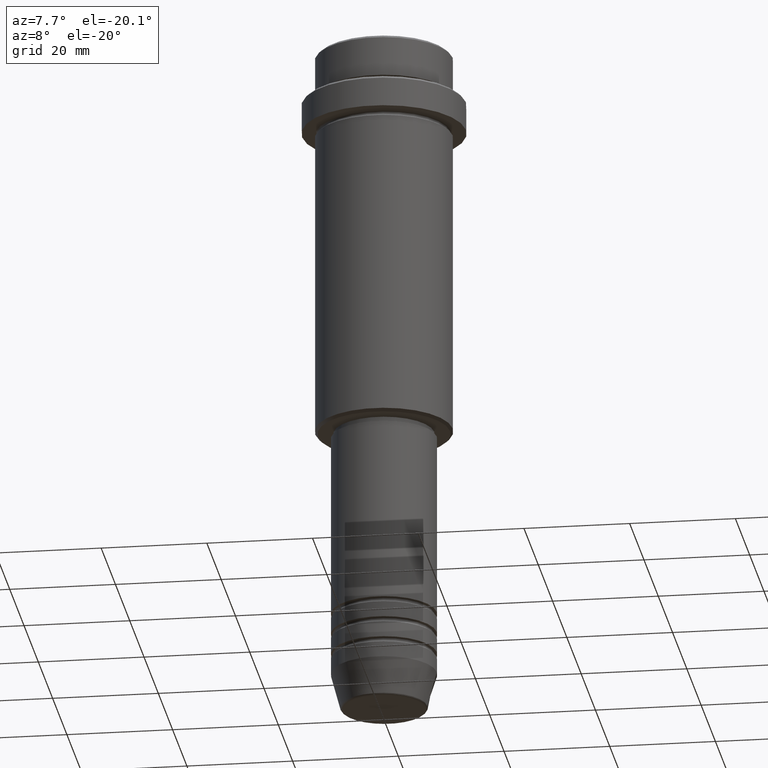
[diagram: clean part render]
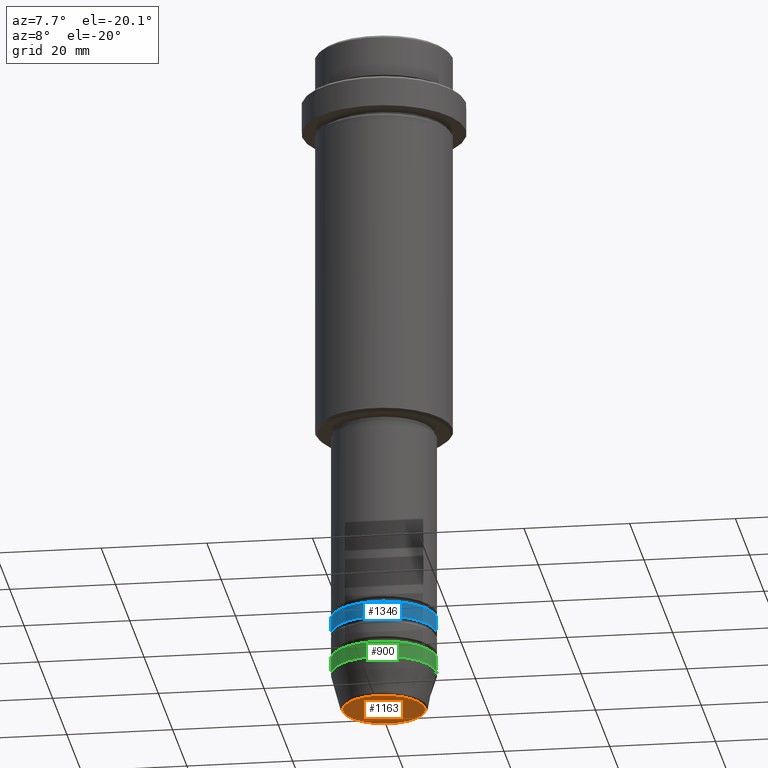
[diagram: same view with three faces highlighted in distinct colors, each labeled with its STEP entity id]
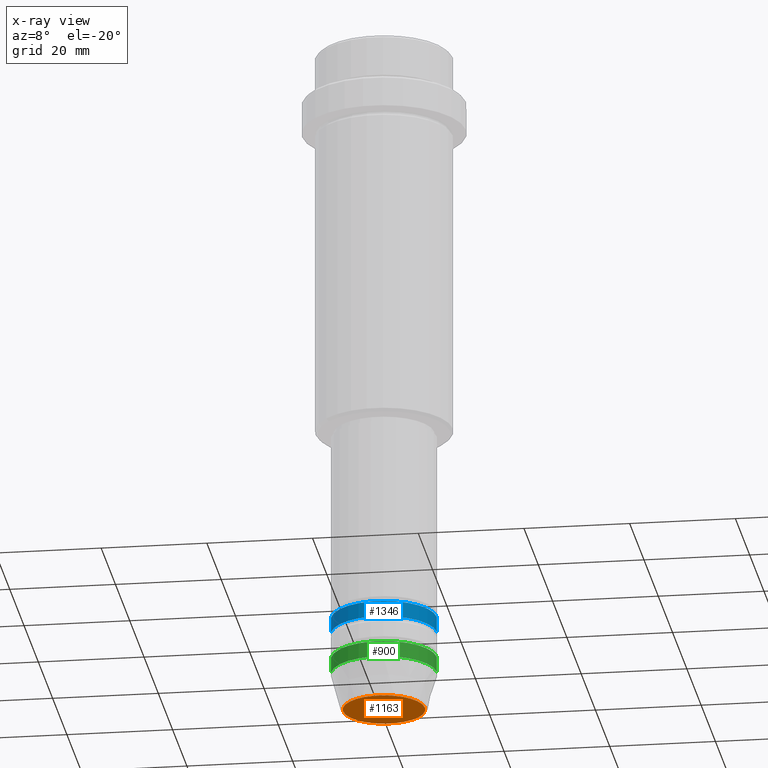
[diagram: x-ray of the same camera — body ghosted, the three highlighted faces saturated]
A machine part, auxiliary view with three faces highlighted in distinct colors.
The next image is the same camera in x-ray (body ghosted, the three faces saturated) — at least one of them is partly hidden behind the body in this view.
Their STEP definitions:

[orange] entity #1163 — the highlighted planar face has unit normal (0, -0, 1).
#33 = DIRECTION ( 'NONE',  ( 1.000000000000000000, 0.000000000000000000, 0.000000000000000000 ) ) ;
#239 = DIRECTION ( 'NONE',  ( 1.000000000000000000, 0.000000000000000000, 0.000000000000000000 ) ) ;
#246 = ORIENTED_EDGE ( 'NONE', *, *, #861, .T. ) ;
#349 = DIRECTION ( 'NONE',  ( 0.000000000000000000, -0.000000000000000000, 1.000000000000000000 ) ) ;
#532 = AXIS2_PLACEMENT_3D ( 'NONE', #1206, #771, #239 ) ;
#619 = CARTESIAN_POINT ( 'NONE',  ( 0.000000000000000000, 0.000000000000000000, -130.0000000000000000 ) ) ;
#697 = VERTEX_POINT ( 'NONE', #1350 ) ;
#703 = AXIS2_PLACEMENT_3D ( 'NONE', #619, #1273, #826 ) ;
#771 = DIRECTION ( 'NONE',  ( 0.000000000000000000, 0.000000000000000000, -1.000000000000000000 ) ) ;
#779 = PLANE ( 'NONE',  #1250 ) ;
#804 = CARTESIAN_POINT ( 'NONE',  ( 0.000000000000000000, 0.000000000000000000, -130.0000000000000000 ) ) ;
#826 = DIRECTION ( 'NONE',  ( 1.000000000000000000, 0.000000000000000000, 0.000000000000000000 ) ) ;
#861 = EDGE_CURVE ( 'NONE', #1036, #697, #1318, .T. ) ;
#917 = EDGE_LOOP ( 'NONE', ( #1000, #246 ) ) ;
#1000 = ORIENTED_EDGE ( 'NONE', *, *, #1173, .T. ) ;
#1036 = VERTEX_POINT ( 'NONE', #1410 ) ;
#1163 = ADVANCED_FACE ( 'NONE', ( #1312 ), #779, .F. ) ;
#1173 = EDGE_CURVE ( 'NONE', #697, #1036, #1277, .T. ) ;
#1206 = CARTESIAN_POINT ( 'NONE',  ( 0.000000000000000000, 0.000000000000000000, -130.0000000000000000 ) ) ;
#1250 = AXIS2_PLACEMENT_3D ( 'NONE', #804, #349, #33 ) ;
#1273 = DIRECTION ( 'NONE',  ( 0.000000000000000000, 0.000000000000000000, -1.000000000000000000 ) ) ;
#1277 = CIRCLE ( 'NONE', #532, 7.740692158992652949 ) ;
#1312 = FACE_OUTER_BOUND ( 'NONE', #917, .T. ) ;
#1318 = CIRCLE ( 'NONE', #703, 7.740692158992652949 ) ;
#1350 = CARTESIAN_POINT ( 'NONE',  ( 7.740692158992652949, 0.000000000000000000, -130.0000000000000000 ) ) ;
#1410 = CARTESIAN_POINT ( 'NONE',  ( -7.740692158992652949, 9.775343368540039135E-16, -130.0000000000000000 ) ) ;

[blue] entity #1346 — the highlighted cylindrical surface (partial cylindrical patch) has radius 10 mm, axis along (-0, -0, 1).
#45 = DIRECTION ( 'NONE',  ( 1.000000000000000000, 0.000000000000000000, 0.000000000000000000 ) ) ;
#110 = EDGE_CURVE ( 'NONE', #543, #1415, #644, .T. ) ;
#137 = LINE ( 'NONE', #1207, #177 ) ;
#177 = VECTOR ( 'NONE', #680, 1000.000000000000000 ) ;
#286 = CARTESIAN_POINT ( 'NONE',  ( 0.000000000000000000, 0.000000000000000000, -111.9999999999998863 ) ) ;
#390 = CARTESIAN_POINT ( 'NONE',  ( 10.00000000000000000, 0.000000000000000000, -114.9999999999999005 ) ) ;
#429 = VERTEX_POINT ( 'NONE', #738 ) ;
#452 = EDGE_CURVE ( 'NONE', #1415, #429, #547, .T. ) ;
#466 = ORIENTED_EDGE ( 'NONE', *, *, #110, .F. ) ;
#526 = ORIENTED_EDGE ( 'NONE', *, *, #1186, .T. ) ;
#543 = VERTEX_POINT ( 'NONE', #1303 ) ;
#547 = CIRCLE ( 'NONE', #726, 10.00000000000000000 ) ;
#550 = CIRCLE ( 'NONE', #954, 10.00000000000000000 ) ;
#624 = FACE_OUTER_BOUND ( 'NONE', #1244, .T. ) ;
#631 = DIRECTION ( 'NONE',  ( 1.000000000000000000, 0.000000000000000000, 0.000000000000000000 ) ) ;
#644 = LINE ( 'NONE', #1092, #1314 ) ;
#659 = AXIS2_PLACEMENT_3D ( 'NONE', #814, #1037, #45 ) ;
#663 = ORIENTED_EDGE ( 'NONE', *, *, #452, .F. ) ;
#669 = CARTESIAN_POINT ( 'NONE',  ( 0.000000000000000000, 0.000000000000000000, -114.9999999999999005 ) ) ;
#680 = DIRECTION ( 'NONE',  ( -0.000000000000000000, -0.000000000000000000, 1.000000000000000000 ) ) ;
#717 = CARTESIAN_POINT ( 'NONE',  ( -10.00000000000000000, 1.224646799147353256E-15, -111.9999999999998863 ) ) ;
#726 = AXIS2_PLACEMENT_3D ( 'NONE', #286, #820, #631 ) ;
#738 = CARTESIAN_POINT ( 'NONE',  ( 10.00000000000000000, 0.000000000000000000, -111.9999999999998863 ) ) ;
#759 = DIRECTION ( 'NONE',  ( -0.000000000000000000, -0.000000000000000000, 1.000000000000000000 ) ) ;
#775 = EDGE_CURVE ( 'NONE', #1376, #429, #137, .T. ) ;
#787 = DIRECTION ( 'NONE',  ( -0.000000000000000000, -0.000000000000000000, 1.000000000000000000 ) ) ;
#814 = CARTESIAN_POINT ( 'NONE',  ( 0.000000000000000000, 0.000000000000000000, 0.000000000000000000 ) ) ;
#820 = DIRECTION ( 'NONE',  ( -0.000000000000000000, -0.000000000000000000, 1.000000000000000000 ) ) ;
#873 = ORIENTED_EDGE ( 'NONE', *, *, #775, .T. ) ;
#954 = AXIS2_PLACEMENT_3D ( 'NONE', #669, #787, #1117 ) ;
#1037 = DIRECTION ( 'NONE',  ( -0.000000000000000000, -0.000000000000000000, 1.000000000000000000 ) ) ;
#1092 = CARTESIAN_POINT ( 'NONE',  ( -10.00000000000000000, 1.224646799147353256E-15, 0.000000000000000000 ) ) ;
#1117 = DIRECTION ( 'NONE',  ( 1.000000000000000000, 0.000000000000000000, 0.000000000000000000 ) ) ;
#1186 = EDGE_CURVE ( 'NONE', #543, #1376, #550, .T. ) ;
#1207 = CARTESIAN_POINT ( 'NONE',  ( 10.00000000000000000, 0.000000000000000000, 0.000000000000000000 ) ) ;
#1244 = EDGE_LOOP ( 'NONE', ( #466, #526, #873, #663 ) ) ;
#1269 = CYLINDRICAL_SURFACE ( 'NONE', #659, 10.00000000000000000 ) ;
#1303 = CARTESIAN_POINT ( 'NONE',  ( -10.00000000000000000, 1.224646799147353256E-15, -114.9999999999999005 ) ) ;
#1314 = VECTOR ( 'NONE', #759, 1000.000000000000000 ) ;
#1346 = ADVANCED_FACE ( 'NONE', ( #624 ), #1269, .T. ) ;
#1376 = VERTEX_POINT ( 'NONE', #390 ) ;
#1415 = VERTEX_POINT ( 'NONE', #717 ) ;

[green] entity #900 — the highlighted cylindrical surface (partial cylindrical patch) has radius 10 mm, axis along (-0, -0, 1).
#6 = EDGE_CURVE ( 'NONE', #1035, #302, #360, .T. ) ;
#51 = CARTESIAN_POINT ( 'NONE',  ( -10.00000000000000000, 1.224646799147353256E-15, -123.0000000000000000 ) ) ;
#66 = CARTESIAN_POINT ( 'NONE',  ( 0.000000000000000000, 0.000000000000000000, 0.000000000000000000 ) ) ;
#101 = AXIS2_PLACEMENT_3D ( 'NONE', #1170, #734, #417 ) ;
#106 = ORIENTED_EDGE ( 'NONE', *, *, #6, .T. ) ;
#141 = DIRECTION ( 'NONE',  ( -0.000000000000000000, -0.000000000000000000, 1.000000000000000000 ) ) ;
#160 = CARTESIAN_POINT ( 'NONE',  ( 10.00000000000000000, 0.000000000000000000, -120.0000000000000000 ) ) ;
#170 = FACE_OUTER_BOUND ( 'NONE', #931, .T. ) ;
#172 = ORIENTED_EDGE ( 'NONE', *, *, #455, .F. ) ;
#262 = EDGE_CURVE ( 'NONE', #1398, #1035, #1270, .T. ) ;
#266 = VERTEX_POINT ( 'NONE', #705 ) ;
#302 = VERTEX_POINT ( 'NONE', #160 ) ;
#360 = LINE ( 'NONE', #800, #1219 ) ;
#381 = DIRECTION ( 'NONE',  ( 1.000000000000000000, 0.000000000000000000, 0.000000000000000000 ) ) ;
#413 = CYLINDRICAL_SURFACE ( 'NONE', #748, 10.00000000000000000 ) ;
#417 = DIRECTION ( 'NONE',  ( 1.000000000000000000, 0.000000000000000000, 0.000000000000000000 ) ) ;
#418 = CARTESIAN_POINT ( 'NONE',  ( 0.000000000000000000, 0.000000000000000000, -123.0000000000000000 ) ) ;
#455 = EDGE_CURVE ( 'NONE', #266, #302, #632, .T. ) ;
#528 = ORIENTED_EDGE ( 'NONE', *, *, #1192, .F. ) ;
#566 = LINE ( 'NONE', #580, #1414 ) ;
#580 = CARTESIAN_POINT ( 'NONE',  ( -10.00000000000000000, 1.224646799147353256E-15, 0.000000000000000000 ) ) ;
#632 = CIRCLE ( 'NONE', #101, 10.00000000000000000 ) ;
#705 = CARTESIAN_POINT ( 'NONE',  ( -10.00000000000000000, 1.224646799147353256E-15, -120.0000000000000000 ) ) ;
#734 = DIRECTION ( 'NONE',  ( -0.000000000000000000, -0.000000000000000000, 1.000000000000000000 ) ) ;
#748 = AXIS2_PLACEMENT_3D ( 'NONE', #66, #1147, #381 ) ;
#783 = DIRECTION ( 'NONE',  ( 1.000000000000000000, 0.000000000000000000, 0.000000000000000000 ) ) ;
#800 = CARTESIAN_POINT ( 'NONE',  ( 10.00000000000000000, 0.000000000000000000, 0.000000000000000000 ) ) ;
#812 = DIRECTION ( 'NONE',  ( -0.000000000000000000, -0.000000000000000000, 1.000000000000000000 ) ) ;
#839 = AXIS2_PLACEMENT_3D ( 'NONE', #418, #812, #783 ) ;
#900 = ADVANCED_FACE ( 'NONE', ( #170 ), #413, .T. ) ;
#931 = EDGE_LOOP ( 'NONE', ( #528, #938, #106, #172 ) ) ;
#938 = ORIENTED_EDGE ( 'NONE', *, *, #262, .T. ) ;
#1035 = VERTEX_POINT ( 'NONE', #1073 ) ;
#1073 = CARTESIAN_POINT ( 'NONE',  ( 10.00000000000000000, 0.000000000000000000, -123.0000000000000000 ) ) ;
#1147 = DIRECTION ( 'NONE',  ( -0.000000000000000000, -0.000000000000000000, 1.000000000000000000 ) ) ;
#1170 = CARTESIAN_POINT ( 'NONE',  ( 0.000000000000000000, 0.000000000000000000, -120.0000000000000000 ) ) ;
#1192 = EDGE_CURVE ( 'NONE', #1398, #266, #566, .T. ) ;
#1219 = VECTOR ( 'NONE', #1230, 1000.000000000000000 ) ;
#1230 = DIRECTION ( 'NONE',  ( -0.000000000000000000, -0.000000000000000000, 1.000000000000000000 ) ) ;
#1270 = CIRCLE ( 'NONE', #839, 10.00000000000000000 ) ;
#1398 = VERTEX_POINT ( 'NONE', #51 ) ;
#1414 = VECTOR ( 'NONE', #141, 1000.000000000000000 ) ;